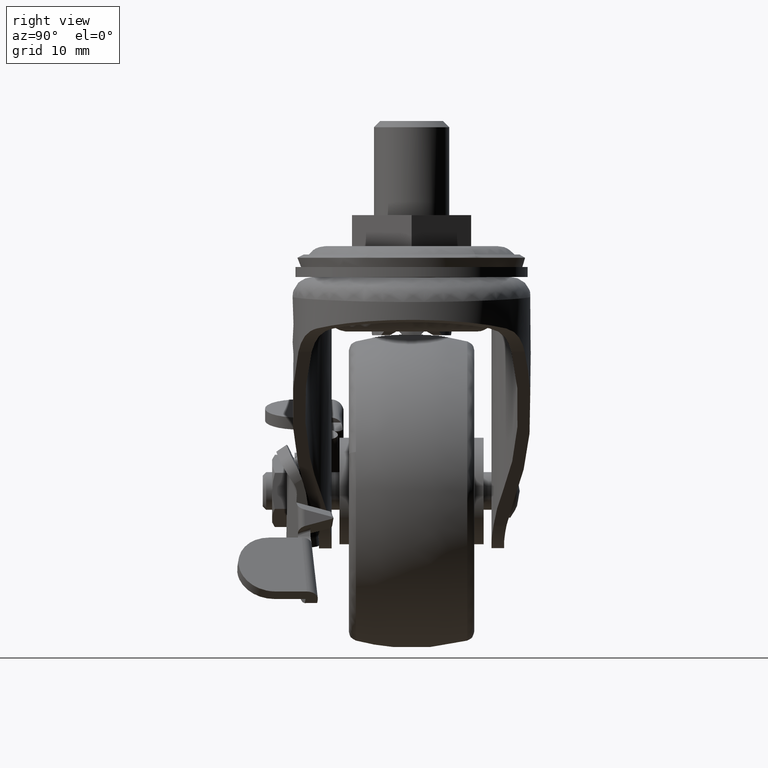
[diagram: clean part render]
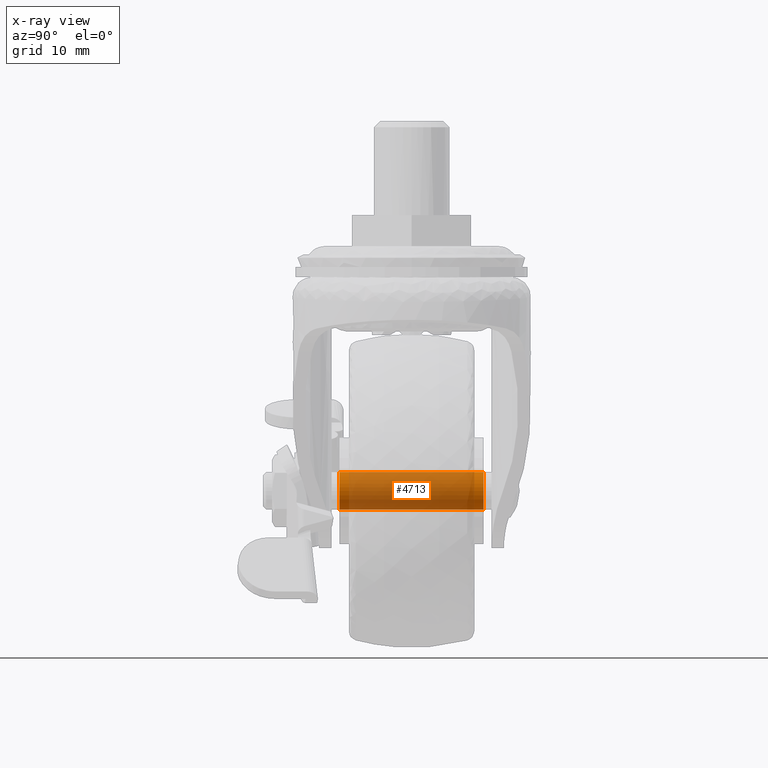
[diagram: x-ray — body ghosted, one internal face saturated and labeled with its STEP entity id]
A machine part, right view, then the same camera in x-ray: the body is ghosted and one INTERNAL B-rep face — a face not visible from any outside direction — is saturated and labeled: STEP entity #4713.
In plain terms, the highlighted face is a freeform B-spline surface patch.
Its self-contained STEP definition (entity closure, byte-faithful):
#4567=CARTESIAN_POINT('',(-21.290666928821334,-12.075000000000005,-38.063272884854094));
#4568=CARTESIAN_POINT('',(-21.235224349694480,-12.074999999999998,-37.997714981488279));
#4569=CARTESIAN_POINT('',(-21.176123113036802,-12.074999999999999,-37.935435272918902));
#4570=CARTESIAN_POINT('',(-19.111059385955596,-12.075000000000001,-35.759312159882100));
#4571=CARTESIAN_POINT('',(-16.934936272918801,-12.074999999999999,-37.824375886963303));
#4572=CARTESIAN_POINT('',(-14.758813159881999,-12.075000000000001,-39.889439614044505));
#4573=CARTESIAN_POINT('',(-16.823876886963198,-12.074999999999999,-42.065562727081300));
#4574=CARTESIAN_POINT('',(-18.888940614044408,-12.075000000000001,-44.241685840118102));
#4575=CARTESIAN_POINT('',(-21.065063727081199,-12.074999999999999,-42.176622113036899));
#4576=CARTESIAN_POINT('',(-21.290666928821334,12.089375000000006,-38.063272884854094));
#4577=CARTESIAN_POINT('',(-21.235224349694480,12.089375000000006,-37.997714981488279));
#4578=CARTESIAN_POINT('',(-21.176123113036802,12.089375000000000,-37.935435272918902));
#4579=CARTESIAN_POINT('',(-19.111059385955596,12.089374999999999,-35.759312159882100));
#4580=CARTESIAN_POINT('',(-16.934936272918801,12.089375000000000,-37.824375886963303));
#4581=CARTESIAN_POINT('',(-14.758813159881999,12.089374999999999,-39.889439614044505));
#4582=CARTESIAN_POINT('',(-16.823876886963198,12.089375000000000,-42.065562727081300));
#4583=CARTESIAN_POINT('',(-18.888940614044408,12.089374999999999,-44.241685840118102));
#4584=CARTESIAN_POINT('',(-21.065063727081199,12.089375000000000,-42.176622113036899));
#4592=(BOUNDED_SURFACE()B_SPLINE_SURFACE(2,1,((#4567,#4576),(#4568,#4577),(#4569,#4578),(#4570,#4579),(#4571,#4580),(#4572,#4581),(#4573,#4582),(#4574,#4583),(#4575,#4584)),.UNSPECIFIED.,.F.,.F.,.U.)B_SPLINE_SURFACE_WITH_KNOTS((3,2,2,2,3),(2,2),(0.0,0.198822509939080,5.169385258416080,10.139948006893080,15.110510755370081),(0.0,24.164375000000010),.UNSPECIFIED.)GEOMETRIC_REPRESENTATION_ITEM()RATIONAL_B_SPLINE_SURFACE(((0.977505800795127,0.977505800795127),(0.988284271247462,0.988284271247462),(1.0,1.0),(0.707106781186548,0.707106781186548),(1.0,1.0),(0.707106781186548,0.707106781186548),(1.0,1.0),(0.707106781186548,0.707106781186548),(1.0,1.0)))REPRESENTATION_ITEM('')SURFACE());
#4593=CARTESIAN_POINT('',(-21.290667165457869,11.500000000000149,-38.063272642625691));
#4594=VERTEX_POINT('',#4593);
#4595=CARTESIAN_POINT('',(-19.0,11.500000000000000,-37.000499000000190));
#4596=VERTEX_POINT('',#4595);
#4597=CARTESIAN_POINT('',(-21.290667165457869,11.500000000000149,-38.063272642625691));
#4598=CARTESIAN_POINT('',(-21.132909921895472,11.500000000000121,-37.876668674223843));
#4599=CARTESIAN_POINT('',(-20.741405933421820,11.500000000000140,-37.514414202110927));
#4600=CARTESIAN_POINT('',(-19.963703708246602,11.500000000000060,-37.107591277636381));
#4601=CARTESIAN_POINT('',(-19.339406198751099,11.500000000000030,-37.000293761445491));
#4602=CARTESIAN_POINT('',(-19.0,11.500000000000000,-37.000499000000190));
#4603=B_SPLINE_CURVE_WITH_KNOTS('',3,(#4597,#4598,#4599,#4600,#4601,#4602),.UNSPECIFIED.,.F.,.U.,(4,1,1,4),(0.000000039432508,0.733059154699793,1.588283692612917,2.606424994245420),.UNSPECIFIED.);
#4604=EDGE_CURVE('',#4594,#4596,#4603,.T.);
#4605=ORIENTED_EDGE('',*,*,#4604,.T.);
#4606=CARTESIAN_POINT('',(-16.000000000000401,11.500000000000000,-40.000500367388618));
#4607=VERTEX_POINT('',#4606);
#4608=CARTESIAN_POINT('',(-19.0,11.500000000000000,-37.000499000000190));
#4609=CARTESIAN_POINT('',(-18.742296400254169,11.499999999999980,-37.000454703108623));
#4610=CARTESIAN_POINT('',(-18.165494154895100,11.500000000000050,-37.075172973444630));
#4611=CARTESIAN_POINT('',(-17.426966475536990,11.499999999999959,-37.402478962106947));
#4612=CARTESIAN_POINT('',(-16.835284822495328,11.500000000000060,-37.888275090595187));
#4613=CARTESIAN_POINT('',(-16.478271086502279,11.499999999999959,-38.345731209618833));
#4614=CARTESIAN_POINT('',(-16.203142846330909,11.500000000000041,-38.868133649609483));
#4615=CARTESIAN_POINT('',(-16.038488550344109,11.499999999999940,-39.399173194716823));
#4616=CARTESIAN_POINT('',(-15.999988069343470,11.500000000000110,-39.816425472209509));
#4617=CARTESIAN_POINT('',(-16.000000000000401,11.500000000000000,-40.000500367388618));
#4618=B_SPLINE_CURVE_WITH_KNOTS('',3,(#4608,#4609,#4610,#4611,#4612,#4613,#4614,#4615,#4616,#4617),.UNSPECIFIED.,.F.,.U.,(4,1,1,1,1,1,1,4),(0.000000119424084,0.773128114353280,1.730352122712941,2.392988922632394,3.055700437447262,3.460682325184757,4.160187008984293,4.712419319324277),.UNSPECIFIED.);
#4619=EDGE_CURVE('',#4596,#4607,#4618,.T.);
#4620=ORIENTED_EDGE('',*,*,#4619,.T.);
#4621=CARTESIAN_POINT('',(-19.0,11.500000000000000,-43.000499000000012));
#4622=VERTEX_POINT('',#4621);
#4623=CARTESIAN_POINT('',(-16.000000000000401,11.500000000000000,-40.000500367388618));
#4624=CARTESIAN_POINT('',(-15.999654790923801,11.499999999999970,-40.368713004149740));
#4625=CARTESIAN_POINT('',(-16.102986905556339,11.500000000000080,-40.920697852396209));
#4626=CARTESIAN_POINT('',(-16.409599596522000,11.499999999999950,-41.539017993721323));
#4627=CARTESIAN_POINT('',(-16.709631674380919,11.500000000000000,-41.959539205040507));
#4628=CARTESIAN_POINT('',(-17.119405149781670,11.500000000000000,-42.369390357271293));
#4629=CARTESIAN_POINT('',(-17.610366256544221,11.499999999999909,-42.680283321906550));
#4630=CARTESIAN_POINT('',(-18.251509547209061,11.500000000000099,-42.932091952397798));
#4631=CARTESIAN_POINT('',(-18.693177626717588,11.499999999999931,-43.000673183327137));
#4632=CARTESIAN_POINT('',(-19.0,11.500000000000000,-43.000499000000012));
#4633=B_SPLINE_CURVE_WITH_KNOTS('',3,(#4623,#4624,#4625,#4626,#4627,#4628,#4629,#4630,#4631,#4632),.UNSPECIFIED.,.F.,.U.,(4,1,1,1,1,1,1,4),(0.000000119879894,1.104471656003231,1.656721081186895,2.061709168765400,2.650709578516576,3.387048220822367,3.792031341563109,4.712417777949126),.UNSPECIFIED.);
#4634=EDGE_CURVE('',#4607,#4622,#4633,.T.);
#4635=ORIENTED_EDGE('',*,*,#4634,.T.);
#4636=CARTESIAN_POINT('',(-21.065063567253102,11.499999999999091,-42.176621794083971));
#4637=VERTEX_POINT('',#4636);
#4638=CARTESIAN_POINT('',(-19.0,11.500000000000000,-43.000499000000012));
#4639=CARTESIAN_POINT('',(-19.284721416264109,11.499999999999851,-43.000622101236907));
#4640=CARTESIAN_POINT('',(-19.759159906340280,11.499999999999689,-42.932408577504830));
#4641=CARTESIAN_POINT('',(-20.467522241083788,11.499999999999330,-42.649805179974543));
#4642=CARTESIAN_POINT('',(-20.858612847914650,11.499999999999210,-42.372694500462948));
#4643=CARTESIAN_POINT('',(-21.065063567253102,11.499999999999091,-42.176621794083971));
#4644=B_SPLINE_CURVE_WITH_KNOTS('',3,(#4638,#4639,#4640,#4641,#4642,#4643),.UNSPECIFIED.,.F.,.U.,(4,1,1,4),(0.000000028913449,0.854125878572991,1.423542152721465,2.277668002360023),.UNSPECIFIED.);
#4645=EDGE_CURVE('',#4622,#4637,#4644,.T.);
#4646=ORIENTED_EDGE('',*,*,#4645,.T.);
#4647=CARTESIAN_POINT('',(-21.065063566340470,-11.500000000000000,-42.176621794950023));
#4648=VERTEX_POINT('',#4647);
#4649=CARTESIAN_POINT('',(-21.065063566340470,-11.500000000000000,-42.176621794950023));
#4650=CARTESIAN_POINT('',(-21.065063567253102,11.499999999999091,-42.176621794083971));
#4651=QUASI_UNIFORM_CURVE('',1,(#4649,#4650),.UNSPECIFIED.,.F.,.U.);
#4652=EDGE_CURVE('',#4648,#4637,#4651,.T.);
#4653=ORIENTED_EDGE('',*,*,#4652,.F.);
#4654=CARTESIAN_POINT('',(-19.0,-11.500000000000000,-43.000499000000012));
#4655=VERTEX_POINT('',#4654);
#4656=CARTESIAN_POINT('',(-19.0,-11.500000000000000,-43.000499000000012));
#4657=CARTESIAN_POINT('',(-19.260981394940629,-11.499999999999989,-43.000553778992497));
#4658=CARTESIAN_POINT('',(-19.806666062509908,-11.500000000000011,-42.928908047838519));
#4659=CARTESIAN_POINT('',(-20.512042132301261,-11.500000000000011,-42.627897978574062));
#4660=CARTESIAN_POINT('',(-20.910187780196161,-11.500000000000030,-42.323614817527549));
#4661=CARTESIAN_POINT('',(-21.065063566340470,-11.500000000000000,-42.176621794950023));
#4662=B_SPLINE_CURVE_WITH_KNOTS('',3,(#4656,#4657,#4658,#4659,#4660,#4661),.UNSPECIFIED.,.F.,.U.,(4,1,1,4),(0.000000028906926,0.782948626724513,1.637073854211325,2.277668001101889),.UNSPECIFIED.);
#4663=EDGE_CURVE('',#4655,#4648,#4662,.T.);
#4664=ORIENTED_EDGE('',*,*,#4663,.F.);
#4665=CARTESIAN_POINT('',(-16.000000000000401,-11.500000000000000,-40.000500367388618));
#4666=VERTEX_POINT('',#4665);
#4667=CARTESIAN_POINT('',(-16.000000000000401,-11.500000000000000,-40.000500367388618));
#4668=CARTESIAN_POINT('',(-15.999654790923801,-11.499999999999970,-40.368713004149740));
#4669=CARTESIAN_POINT('',(-16.102986905556339,-11.500000000000080,-40.920697852396209));
#4670=CARTESIAN_POINT('',(-16.409599596522000,-11.499999999999950,-41.539017993721323));
#4671=CARTESIAN_POINT('',(-16.709631674380919,-11.500000000000000,-41.959539205040507));
#4672=CARTESIAN_POINT('',(-17.119405149781670,-11.500000000000000,-42.369390357271293));
#4673=CARTESIAN_POINT('',(-17.610366256544221,-11.499999999999909,-42.680283321906550));
#4674=CARTESIAN_POINT('',(-18.251509547209061,-11.500000000000099,-42.932091952397798));
#4675=CARTESIAN_POINT('',(-18.693177626717588,-11.499999999999931,-43.000673183327137));
#4676=CARTESIAN_POINT('',(-19.0,-11.500000000000000,-43.000499000000012));
#4677=B_SPLINE_CURVE_WITH_KNOTS('',3,(#4667,#4668,#4669,#4670,#4671,#4672,#4673,#4674,#4675,#4676),.UNSPECIFIED.,.F.,.U.,(4,1,1,1,1,1,1,4),(0.000000119879894,1.104471656003231,1.656721081186895,2.061709168765400,2.650709578516576,3.387048220822367,3.792031341563109,4.712417777949126),.UNSPECIFIED.);
#4678=EDGE_CURVE('',#4666,#4655,#4677,.T.);
#4679=ORIENTED_EDGE('',*,*,#4678,.F.);
#4680=CARTESIAN_POINT('',(-19.0,-11.500000000000000,-37.000499000000190));
#4681=VERTEX_POINT('',#4680);
#4682=CARTESIAN_POINT('',(-19.0,-11.500000000000000,-37.000499000000190));
#4683=CARTESIAN_POINT('',(-18.742296400254169,-11.499999999999980,-37.000454703108623));
#4684=CARTESIAN_POINT('',(-18.165494154895100,-11.500000000000050,-37.075172973444630));
#4685=CARTESIAN_POINT('',(-17.426966475536990,-11.499999999999959,-37.402478962106947));
#4686=CARTESIAN_POINT('',(-16.835284822495328,-11.500000000000060,-37.888275090595187));
#4687=CARTESIAN_POINT('',(-16.478271086502279,-11.499999999999959,-38.345731209618833));
#4688=CARTESIAN_POINT('',(-16.203142846330909,-11.500000000000041,-38.868133649609483));
#4689=CARTESIAN_POINT('',(-16.038488550344109,-11.499999999999940,-39.399173194716823));
#4690=CARTESIAN_POINT('',(-15.999988069343470,-11.500000000000110,-39.816425472209509));
#4691=CARTESIAN_POINT('',(-16.000000000000401,-11.500000000000000,-40.000500367388618));
#4692=B_SPLINE_CURVE_WITH_KNOTS('',3,(#4682,#4683,#4684,#4685,#4686,#4687,#4688,#4689,#4690,#4691),.UNSPECIFIED.,.F.,.U.,(4,1,1,1,1,1,1,4),(0.000000119424084,0.773128114353280,1.730352122712941,2.392988922632394,3.055700437447262,3.460682325184757,4.160187008984293,4.712419319324277),.UNSPECIFIED.);
#4693=EDGE_CURVE('',#4681,#4666,#4692,.T.);
#4694=ORIENTED_EDGE('',*,*,#4693,.F.);
#4695=CARTESIAN_POINT('',(-21.290667165739801,-11.500000000000000,-38.063272642959049));
#4696=VERTEX_POINT('',#4695);
#4697=CARTESIAN_POINT('',(-21.290667165739801,-11.500000000000000,-38.063272642959049));
#4698=CARTESIAN_POINT('',(-21.097902204290179,-11.500000000000000,-37.835142852806001));
#4699=CARTESIAN_POINT('',(-20.664149062720711,-11.500000000000000,-37.455370583277400));
#4700=CARTESIAN_POINT('',(-19.868742423656570,-11.500000000000030,-37.086317387928048));
#4701=CARTESIAN_POINT('',(-19.298663312657229,-11.499999999999989,-37.000385127618898));
#4702=CARTESIAN_POINT('',(-19.0,-11.500000000000000,-37.000499000000190));
#4703=B_SPLINE_CURVE_WITH_KNOTS('',3,(#4697,#4698,#4699,#4700,#4701,#4702),.UNSPECIFIED.,.F.,.U.,(4,1,1,4),(0.000000039432560,0.895960320683301,1.710464713417589,2.606424994682063),.UNSPECIFIED.);
#4704=EDGE_CURVE('',#4696,#4681,#4703,.T.);
#4705=ORIENTED_EDGE('',*,*,#4704,.F.);
#4706=CARTESIAN_POINT('',(-21.290667165739801,-11.500000000000000,-38.063272642959049));
#4707=CARTESIAN_POINT('',(-21.290667165457869,11.500000000000149,-38.063272642625691));
#4708=QUASI_UNIFORM_CURVE('',1,(#4706,#4707),.UNSPECIFIED.,.F.,.U.);
#4709=EDGE_CURVE('',#4696,#4594,#4708,.T.);
#4710=ORIENTED_EDGE('',*,*,#4709,.T.);
#4711=EDGE_LOOP('',(#4605,#4620,#4635,#4646,#4653,#4664,#4679,#4694,#4705,#4710));
#4712=FACE_OUTER_BOUND('',#4711,.T.);
#4713=ADVANCED_FACE('',(#4712),#4592,.F.);